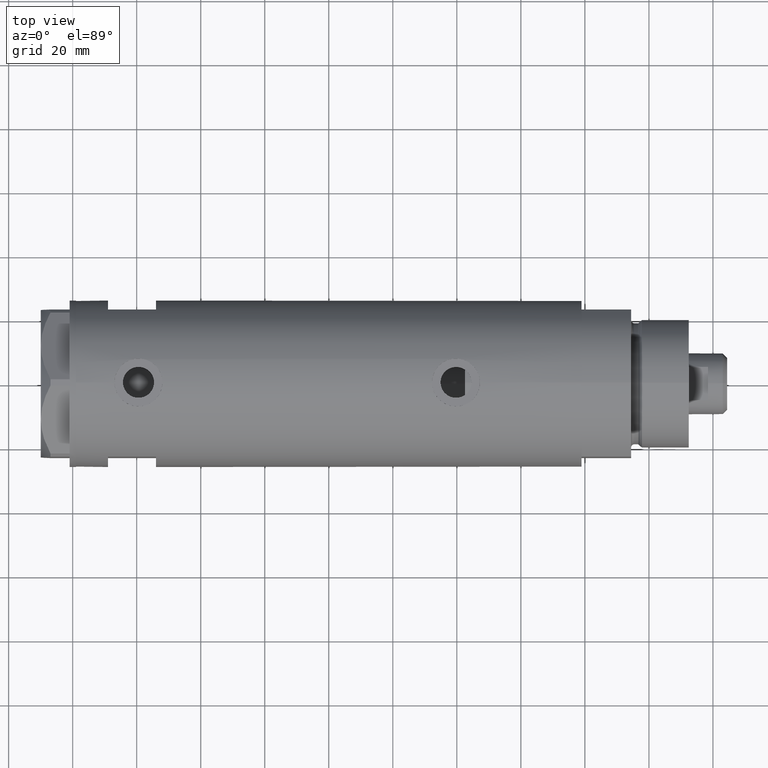
[diagram: clean part render]
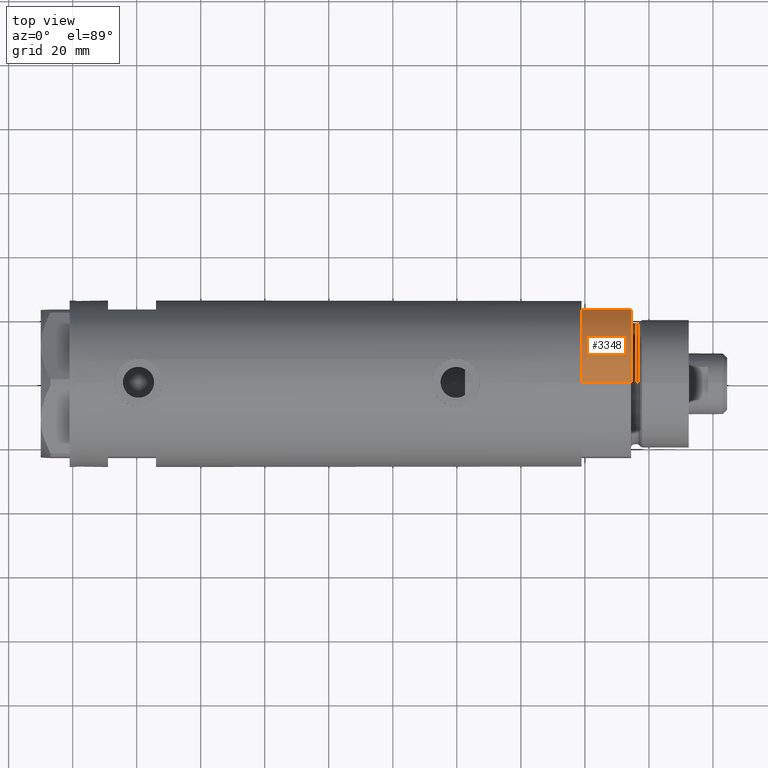
[diagram: same view with one face highlighted and labeled with its STEP entity id]
A machine part, top view. The second image highlights one B-rep face of the part: STEP entity #3348.
In plain terms, the highlighted cylindrical surface (partial cylindrical patch) has radius 26 mm, axis along (-1, -0, 0).
Its self-contained STEP definition (entity closure, byte-faithful):
#134 = CIRCLE ( 'NONE', #823, 26.00000000000000355 ) ;
#143 = VECTOR ( 'NONE', #4267, 1000.000000000000000 ) ;
#216 = EDGE_CURVE ( 'NONE', #3811, #3493, #439, .T. ) ;
#231 = CARTESIAN_POINT ( 'NONE',  ( -26.00000000000000355, 0.000000000000000000, 15.50000000000000000 ) ) ;
#337 = CARTESIAN_POINT ( 'NONE',  ( 0.000000000000000000, 0.000000000000000000, 0.000000000000000000 ) ) ;
#425 = EDGE_CURVE ( 'NONE', #1664, #4583, #134, .T. ) ;
#439 = CIRCLE ( 'NONE', #3769, 26.00000000000000355 ) ;
#574 = DIRECTION ( 'NONE',  ( -0.000000000000000000, -0.000000000000000000, -1.000000000000000000 ) ) ;
#823 = AXIS2_PLACEMENT_3D ( 'NONE', #1490, #2991, #1113 ) ;
#858 = CARTESIAN_POINT ( 'NONE',  ( -12.12435565298215145, 23.00000000000000355, 0.000000000000000000 ) ) ;
#1110 = DIRECTION ( 'NONE',  ( -1.000000000000000000, 0.000000000000000000, 0.000000000000000000 ) ) ;
#1113 = DIRECTION ( 'NONE',  ( 1.000000000000000000, 0.000000000000000000, 0.000000000000000000 ) ) ;
#1141 = DIRECTION ( 'NONE',  ( 1.000000000000000000, 0.000000000000000000, 0.000000000000000000 ) ) ;
#1179 = VECTOR ( 'NONE', #574, 1000.000000000000000 ) ;
#1461 = FACE_OUTER_BOUND ( 'NONE', #4394, .T. ) ;
#1490 = CARTESIAN_POINT ( 'NONE',  ( 0.000000000000000000, 0.000000000000000000, 15.50000000000000000 ) ) ;
#1664 = VERTEX_POINT ( 'NONE', #3673 ) ;
#2050 = CARTESIAN_POINT ( 'NONE',  ( -26.00000000000000355, 0.000000000000000000, 0.000000000000000000 ) ) ;
#2066 = CARTESIAN_POINT ( 'NONE',  ( -26.00000000000000355, 0.000000000000000000, 15.50000000000000000 ) ) ;
#2205 = EDGE_CURVE ( 'NONE', #3811, #1664, #4754, .T. ) ;
#2304 = LINE ( 'NONE', #231, #1179 ) ;
#2545 = CYLINDRICAL_SURFACE ( 'NONE', #4182, 26.00000000000000355 ) ;
#2991 = DIRECTION ( 'NONE',  ( 0.000000000000000000, 0.000000000000000000, 1.000000000000000000 ) ) ;
#3348 = ADVANCED_FACE ( 'NONE', ( #1461 ), #2545, .T. ) ;
#3493 = VERTEX_POINT ( 'NONE', #2050 ) ;
#3522 = ORIENTED_EDGE ( 'NONE', *, *, #2205, .F. ) ;
#3612 = ORIENTED_EDGE ( 'NONE', *, *, #425, .F. ) ;
#3626 = CARTESIAN_POINT ( 'NONE',  ( -12.12435565298215145, 23.00000000000000355, 0.000000000000000000 ) ) ;
#3673 = CARTESIAN_POINT ( 'NONE',  ( -12.12435565298214613, 23.00000000000000355, 15.50000000000000000 ) ) ;
#3721 = DIRECTION ( 'NONE',  ( -0.000000000000000000, -0.000000000000000000, -1.000000000000000000 ) ) ;
#3766 = CARTESIAN_POINT ( 'NONE',  ( 0.000000000000000000, 0.000000000000000000, 15.50000000000000000 ) ) ;
#3769 = AXIS2_PLACEMENT_3D ( 'NONE', #337, #4531, #1141 ) ;
#3811 = VERTEX_POINT ( 'NONE', #858 ) ;
#4179 = ORIENTED_EDGE ( 'NONE', *, *, #4866, .F. ) ;
#4182 = AXIS2_PLACEMENT_3D ( 'NONE', #3766, #3721, #1110 ) ;
#4237 = ORIENTED_EDGE ( 'NONE', *, *, #216, .T. ) ;
#4267 = DIRECTION ( 'NONE',  ( -0.000000000000000000, -0.000000000000000000, 1.000000000000000000 ) ) ;
#4394 = EDGE_LOOP ( 'NONE', ( #4179, #3612, #3522, #4237 ) ) ;
#4531 = DIRECTION ( 'NONE',  ( 0.000000000000000000, 0.000000000000000000, 1.000000000000000000 ) ) ;
#4583 = VERTEX_POINT ( 'NONE', #2066 ) ;
#4754 = LINE ( 'NONE', #3626, #143 ) ;
#4866 = EDGE_CURVE ( 'NONE', #4583, #3493, #2304, .T. ) ;